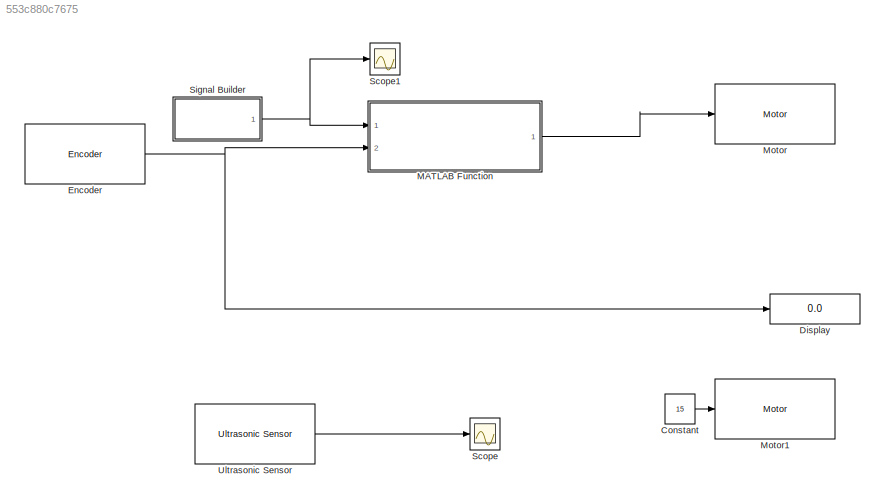
MODEL slx_553c880c7675
KIND model
CONFIG AbsTol = auto
CONFIG FixedStep = auto
CONFIG MaxStep = auto
CONFIG MinStep = auto
CONFIG RelTol = 1e-3
CONFIG SampleTimeConstraint = Unconstrained
CONFIG Solver = ode45
CONFIG SolverMode = Auto
CONFIG SolverName = ode45
CONFIG StartTime = 0.0
CONFIG StopTime = 10.0
BLOCK [Constant] Constant
  Value = 15
BLOCK [Display] Display
  Decimation = 1
  Ports = [1]
BLOCK [Reference] Encoder  REF=legoev3lib/Encoder
  Ports = [0, 1]
  SourceBlock = legoev3lib/Encoder
  SourceType = LEGO MINDSTORMS EV3 Encoder
  opMode = Reset at each sample time
  portNumber = B
  sampleTime = 0.1
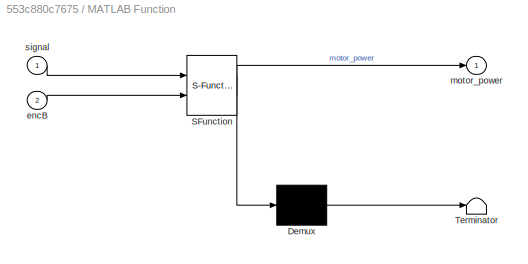
BLOCK [SubSystem] MATLAB Function
  ErrorFcn = Stateflow.Translate.translate
  PermitHierarchicalResolution = ExplicitOnly
  Ports = [2, 1]
  RequestExecContextInheritance = off
  SFBlockType = MATLAB Function
  TreatAsAtomicUnit = on
BLOCK [Demux] MATLAB Function/ Demux 
  Outputs = 1
  Ports = [1, 1]
BLOCK [S-Function] MATLAB Function/ SFunction 
  EnableBusSupport = on
  FunctionName = sf_sfun
  PortCounts = [2 2]
  Ports = [2, 2]
  Tag = Stateflow S-Function straight2 2
BLOCK [Terminator] MATLAB Function/ Terminator 
BLOCK [Inport] MATLAB Function/encB
  IconDisplay = Port number
  Port = 2
BLOCK [Outport] MATLAB Function/motor_power
  IconDisplay = Port number
BLOCK [Inport] MATLAB Function/signal
  IconDisplay = Port number
BLOCK [Reference] Motor  REF=legoev3lib/Motor
  Ports = [1]
  SourceBlock = legoev3lib/Motor
  SourceType = LEGO MINDSTORMS EV3 Motor
  sportNumber = B
  sstopAction = Brake
BLOCK [Reference] Motor1  REF=legoev3lib/Motor
  Ports = [1]
  SourceBlock = legoev3lib/Motor
  SourceType = LEGO MINDSTORMS EV3 Motor
  sportNumber = A
  sstopAction = Brake
BLOCK [Scope] Scope
  Floating = off
  NumInputPorts = 1
  Ports = [1]
BLOCK [Scope] Scope1
  Floating = off
  NumInputPorts = 1
  Ports = [1]
  SaveName = ScopeData1
  YMax = 1
  YMin = -1
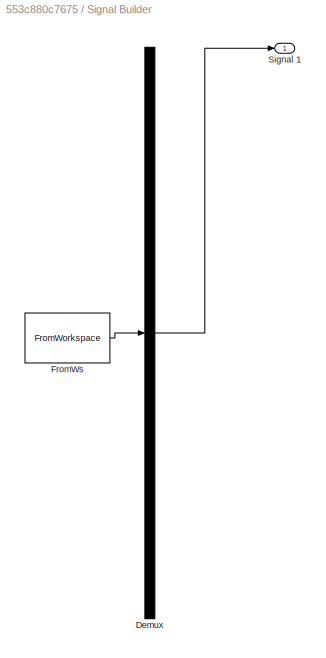
BLOCK [SubSystem] Signal Builder
  ClipboardFcn = sigbuilder_block('clipboard');
  CloseFcn = sigbuilder_block('close');
  ContinueFcn = sigbuilder_block('continue');
  CopyFcn = sigbuilder_block('copy');
  DeleteFcn = sigbuilder_block('delete');
  LoadFcn = sigbuilder_block('load',[402.75 177 551.25 360 ]);
  MaskHideContents = on
  ModelCloseFcn = sigbuilder_block('modelClose');
  NameChangeFcn = sigbuilder_block('namechange');
  OpenFcn = sigbuilder_block('open',[437.6 199.2 550.4 400 ]);
  PauseFcn = sigbuilder_block('pause');
  Ports = [0, 1]
  PreSaveFcn = sigbuilder_block('preSave');
  RequestExecContextInheritance = off
  StartFcn = sigbuilder_block('start');
  StopFcn = sigbuilder_block('stop');
  Tag = STV Subsys
BLOCK [Demux] Signal Builder/Demux
  Outputs = 1
  Ports = [1, 1]
  Tag = STV Demux
BLOCK [FromWorkspace] Signal Builder/FromWs
  SampleTime = 0
  Tag = STV FromWs
  VariableName = tuvar
  ZeroCross = on
BLOCK [Outport] Signal Builder/Signal 1
  IconDisplay = Port number
  Tag = STV Outport
BLOCK [Reference] Ultrasonic Sensor  REF=legoev3lib/Ultrasonic Sensor
  PortNumber = 1
  Ports = [0, 1]
  SourceBlock = legoev3lib/Ultrasonic Sensor
  SourceType = LEGO MINDSTORMS EV3 Ultrasonic Sensor
  sampleTime = 0.1
LINE Constant:1 -> Motor1:1
NET Encoder:1 -> Display:1, MATLAB Function:2
LINE MATLAB Function:1 -> Motor:1
NET Signal Builder:1 -> MATLAB Function:1, Scope1:1
LINE Ultrasonic Sensor:1 -> Scope:1
note: NET lines group one-source signal fan-out (src -> all destinations, sorted); 1:1 wires keep LINE
CHART MATLAB Function states=1 transitions=1
  STATE_LABEL 'eML_blk_kernel()'
  STATE_LABEL 'SCRIPT:\nfunction motor_power = fcn(signal,encB)\nif(signal==1)&&(encB<=30)\n    motor_power=20;\nelseif(signal==0)&&(encB>=-30)\n    motor_power=-20;\nelse\n    motor_power=0;\nend \nend\n\n    '
